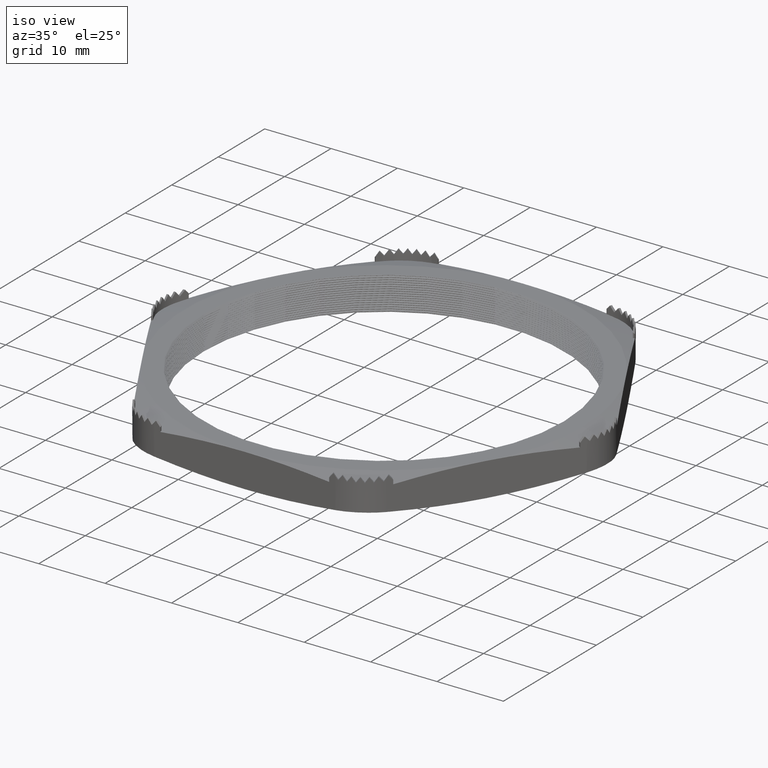
[diagram: clean part render]
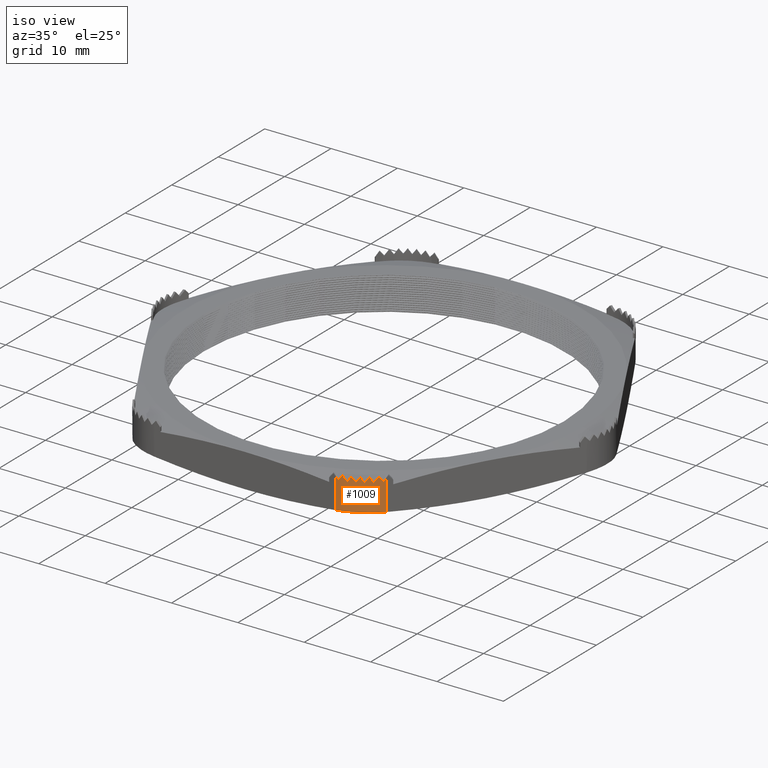
[diagram: same view with one face highlighted and labeled with its STEP entity id]
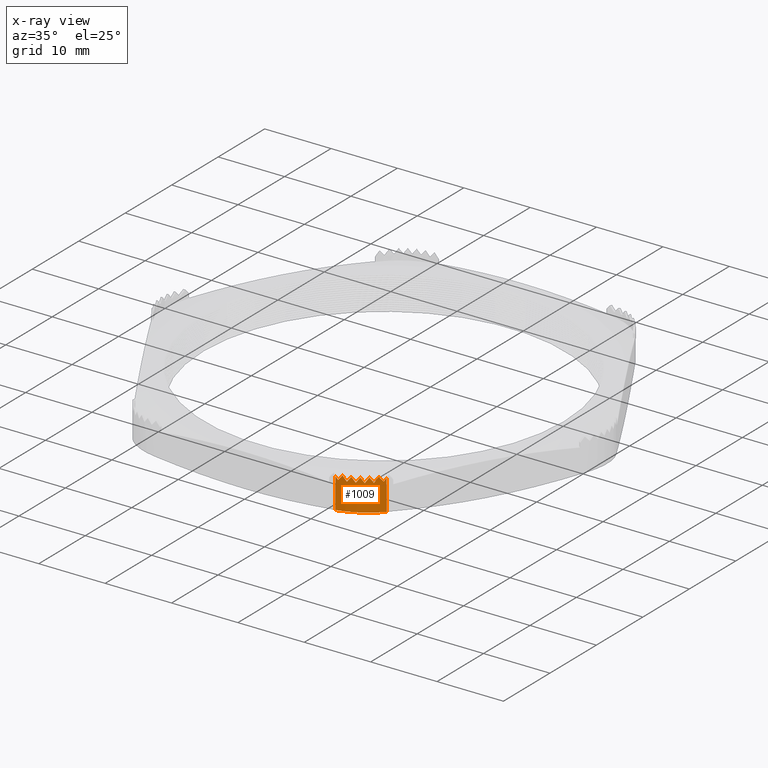
[diagram: x-ray of the same camera — body ghosted, the highlighted face saturated]
A machine part, iso view. The second image highlights one B-rep face of the part: STEP entity #1009.
The next image is the same camera in x-ray: the body ghosted, the highlighted face saturated — about 0% of this face is hidden behind the body in this view.
In plain terms, the highlighted cylindrical surface (partial cylindrical patch) has radius 6.35 mm, axis along (0, 0, -1).
Its self-contained STEP definition (entity closure, byte-faithful):
#709 = VERTEX_POINT ( 'NONE', #4033 ) ;
#743 = VERTEX_POINT ( 'NONE', #4134 ) ;
#745 = EDGE_CURVE ( 'NONE', #743, #746, #4133, .T. ) ;
#746 = VERTEX_POINT ( 'NONE', #4129 ) ;
#772 = VERTEX_POINT ( 'NONE', #4174 ) ;
#774 = EDGE_CURVE ( 'NONE', #772, #709, #4226, .T. ) ;
#919 = EDGE_LOOP ( 'NONE', ( #920, #923, #924, #926, #927, #993, #996, #999, #1002, #1005, #978, #981, #984, #987, #990 ) ) ;
#920 = ORIENTED_EDGE ( 'NONE', *, *, #921, .F. ) ;
#921 = EDGE_CURVE ( 'NONE', #709, #922, #4515, .T. ) ;
#922 = VERTEX_POINT ( 'NONE', #4516 ) ;
#923 = ORIENTED_EDGE ( 'NONE', *, *, #774, .F. ) ;
#924 = ORIENTED_EDGE ( 'NONE', *, *, #925, .T. ) ;
#925 = EDGE_CURVE ( 'NONE', #772, #746, #4544, .T. ) ;
#926 = ORIENTED_EDGE ( 'NONE', *, *, #745, .F. ) ;
#927 = ORIENTED_EDGE ( 'NONE', *, *, #991, .F. ) ;
#976 = EDGE_CURVE ( 'NONE', #977, #1004, #4617, .T. ) ;
#977 = VERTEX_POINT ( 'NONE', #4618 ) ;
#978 = ORIENTED_EDGE ( 'NONE', *, *, #979, .F. ) ;
#979 = EDGE_CURVE ( 'NONE', #980, #977, #4647, .T. ) ;
#980 = VERTEX_POINT ( 'NONE', #4648 ) ;
#981 = ORIENTED_EDGE ( 'NONE', *, *, #982, .F. ) ;
#982 = EDGE_CURVE ( 'NONE', #983, #980, #4641, .T. ) ;
#983 = VERTEX_POINT ( 'NONE', #4642 ) ;
#984 = ORIENTED_EDGE ( 'NONE', *, *, #985, .F. ) ;
#985 = EDGE_CURVE ( 'NONE', #986, #983, #4659, .T. ) ;
#986 = VERTEX_POINT ( 'NONE', #4660 ) ;
#987 = ORIENTED_EDGE ( 'NONE', *, *, #988, .F. ) ;
#988 = EDGE_CURVE ( 'NONE', #989, #986, #4653, .T. ) ;
#989 = VERTEX_POINT ( 'NONE', #4654 ) ;
#990 = ORIENTED_EDGE ( 'NONE', *, *, #1053, .F. ) ;
#991 = EDGE_CURVE ( 'NONE', #992, #743, #4672, .T. ) ;
#992 = VERTEX_POINT ( 'NONE', #4673 ) ;
#993 = ORIENTED_EDGE ( 'NONE', *, *, #994, .F. ) ;
#994 = EDGE_CURVE ( 'NONE', #995, #992, #4666, .T. ) ;
#995 = VERTEX_POINT ( 'NONE', #4667 ) ;
#996 = ORIENTED_EDGE ( 'NONE', *, *, #997, .F. ) ;
#997 = EDGE_CURVE ( 'NONE', #998, #995, #4661, .T. ) ;
#998 = VERTEX_POINT ( 'NONE', #4686 ) ;
#999 = ORIENTED_EDGE ( 'NONE', *, *, #1000, .F. ) ;
#1000 = EDGE_CURVE ( 'NONE', #1001, #998, #4680, .T. ) ;
#1001 = VERTEX_POINT ( 'NONE', #4681 ) ;
#1002 = ORIENTED_EDGE ( 'NONE', *, *, #1003, .F. ) ;
#1003 = EDGE_CURVE ( 'NONE', #1004, #1001, #4674, .T. ) ;
#1004 = VERTEX_POINT ( 'NONE', #4675 ) ;
#1005 = ORIENTED_EDGE ( 'NONE', *, *, #976, .F. ) ;
#1009 = ADVANCED_FACE ( 'NONE', ( #4692 ), #4691, .T. ) ;
#1053 = EDGE_CURVE ( 'NONE', #922, #989, #4789, .T. ) ;
#4033 = CARTESIAN_POINT ( 'NONE',  ( 0.5369357503463522100, -1.179999999999999700, 0.2147405409647772900 ) ) ;
#4129 = CARTESIAN_POINT ( 'NONE',  ( 0.7534421012924618100, -1.054999999999999700, 0.03119414724621189300 ) ) ;
#4130 = DIRECTION ( 'NONE',  ( 0.0000000000000000000, 0.0000000000000000000, -1.000000000000000000 ) ) ;
#4131 = VECTOR ( 'NONE', #4130, 39.37007874015748100 ) ;
#4132 = CARTESIAN_POINT ( 'NONE',  ( 0.7534421012924618100, -1.054999999999999700, 0.2000000000000000100 ) ) ;
#4133 = LINE ( 'NONE', #4132, #4131 ) ;
#4134 = CARTESIAN_POINT ( 'NONE',  ( 0.7534421012924618100, -1.054999999999999700, 0.2136363051197404900 ) ) ;
#4174 = CARTESIAN_POINT ( 'NONE',  ( 0.5369357503463522100, -1.179999999999999700, 0.03119414724621191400 ) ) ;
#4223 = DIRECTION ( 'NONE',  ( 0.0000000000000000000, 0.0000000000000000000, 1.000000000000000000 ) ) ;
#4224 = VECTOR ( 'NONE', #4223, 39.37007874015748100 ) ;
#4225 = CARTESIAN_POINT ( 'NONE',  ( 0.5369357503463522100, -1.179999999999999700, 0.2000000000000000100 ) ) ;
#4226 = LINE ( 'NONE', #4225, #4224 ) ;
#4511 = CARTESIAN_POINT ( 'NONE',  ( 0.5539226775332906100, -1.179422220952234900, 0.1965000000000000100 ) ) ;
#4512 = CARTESIAN_POINT ( 'NONE',  ( 0.5482680091621551200, -1.179807332749892800, 0.2026891886620615900 ) ) ;
#4513 = CARTESIAN_POINT ( 'NONE',  ( 0.5426035175861221300, -1.179999999999999700, 0.2087717125641309900 ) ) ;
#4514 = CARTESIAN_POINT ( 'NONE',  ( 0.5369357503463522100, -1.179999999999999700, 0.2147405409647772900 ) ) ;
#4515 =( BOUNDED_CURVE ( )  B_SPLINE_CURVE ( 3, ( #4514, #4513, #4512, #4511 ),
 .UNSPECIFIED., .F., .T. ) 
 B_SPLINE_CURVE_WITH_KNOTS ( ( 4, 4 ),
 ( 4.188790204786382500, 4.256790306988891700 ),
 .UNSPECIFIED. ) 
 CURVE ( )  GEOMETRIC_REPRESENTATION_ITEM ( )  RATIONAL_B_SPLINE_CURVE ( ( 1.000000000000000000, 0.9996147026276078800, 0.9996147026276078800, 1.000000000000000000 ) ) 
 REPRESENTATION_ITEM ( '' )  );
#4516 = CARTESIAN_POINT ( 'NONE',  ( 0.5539226775332906100, -1.179422220952234900, 0.1965000000000000100 ) ) ;
#4530 = CARTESIAN_POINT ( 'NONE',  ( 0.7534421012924618100, -1.054999999999999700, 0.03119414724621189300 ) ) ;
#4531 = CARTESIAN_POINT ( 'NONE',  ( 0.7479609557944286700, -1.064493622486270400, 0.03241070015073090100 ) ) ;
#4532 = CARTESIAN_POINT ( 'NONE',  ( 0.7418413585470476900, -1.073638839935633600, 0.03348309476403061500 ) ) ;
#4533 = CARTESIAN_POINT ( 'NONE',  ( 0.7285849930246484100, -1.090900566782677700, 0.03531306191811654800 ) ) ;
#4534 = CARTESIAN_POINT ( 'NONE',  ( 0.7214282535390670300, -1.099058029252787400, 0.03607628322899918800 ) ) ;
#4535 = CARTESIAN_POINT ( 'NONE',  ( 0.6983792361406766500, -1.122115602831157400, 0.03792123826636976900 ) ) ;
#4536 = CARTESIAN_POINT ( 'NONE',  ( 0.6806925331664173100, -1.135687147511603000, 0.03855214040762992200 ) ) ;
#4537 = CARTESIAN_POINT ( 'NONE',  ( 0.6524273653811296600, -1.151990969796561100, 0.03854930190488606300 ) ) ;
#4538 = CARTESIAN_POINT ( 'NONE',  ( 0.6426698729453316200, -1.156803326997233500, 0.03839484179317985400 ) ) ;
#4539 = CARTESIAN_POINT ( 'NONE',  ( 0.6224735392539729700, -1.165165347123221700, 0.03777317739728672900 ) ) ;
#4540 = CARTESIAN_POINT ( 'NONE',  ( 0.6119774973205375200, -1.168721048756882000, 0.03730086728492430800 ) ) ;
#4541 = CARTESIAN_POINT ( 'NONE',  ( 0.5803589992278849200, -1.177164789342385800, 0.03544432282190015200 ) ) ;
#4542 = CARTESIAN_POINT ( 'NONE',  ( 0.5588595931555173600, -1.179999999999999900, 0.03362717102356631300 ) ) ;
#4543 = CARTESIAN_POINT ( 'NONE',  ( 0.5369357503463522100, -1.179999999999999700, 0.03119414724621191400 ) ) ;
#4544 = B_SPLINE_CURVE_WITH_KNOTS ( 'NONE', 3,
 ( #4543, #4542, #4541, #4540, #4539, #4538, #4537, #4536, #4535, #4534, #4533, #4532, #4531, #4530 ),
 .UNSPECIFIED., .F., .F.,
 ( 4, 2, 2, 2, 2, 2, 4 ),
 ( 1.984002919198622400E-007, 0.001657436792177085000, 0.002486055988119669500, 0.003314675184062254200, 0.004971913575947430100, 0.005800532771890017800, 0.006629151967832605500 ),
 .UNSPECIFIED. ) ;
#4613 = CARTESIAN_POINT ( 'NONE',  ( 0.6805033685598030900, -1.134666409067332400, 0.1965000000000000100 ) ) ;
#4614 = CARTESIAN_POINT ( 'NONE',  ( 0.6744900993541745900, -1.138884545015788500, 0.2062777876756027300 ) ) ;
#4615 = CARTESIAN_POINT ( 'NONE',  ( 0.6682968868850807100, -1.142833747053122200, 0.2160841314132998200 ) ) ;
#4616 = CARTESIAN_POINT ( 'NONE',  ( 0.6619357503463588800, -1.146506350946105500, 0.2259000000000000200 ) ) ;
#4617 =( BOUNDED_CURVE ( )  B_SPLINE_CURVE ( 3, ( #4616, #4615, #4614, #4613 ),
 .UNSPECIFIED., .F., .T. ) 
 B_SPLINE_CURVE_WITH_KNOTS ( ( 4, 4 ),
 ( 4.712388980384712800, 4.800502956684431900 ),
 .UNSPECIFIED. ) 
 CURVE ( )  GEOMETRIC_REPRESENTATION_ITEM ( )  RATIONAL_B_SPLINE_CURVE ( ( 1.000000000000000000, 0.9993530985791632100, 0.9993530985791632100, 1.000000000000000000 ) ) 
 REPRESENTATION_ITEM ( '' )  );
#4618 = CARTESIAN_POINT ( 'NONE',  ( 0.6619357503463588800, -1.146506350946105500, 0.2259000000000000200 ) ) ;
#4637 = CARTESIAN_POINT ( 'NONE',  ( 0.6423982507932886100, -1.156666409067333500, 0.1965000000000000100 ) ) ;
#4638 = CARTESIAN_POINT ( 'NONE',  ( 0.6356861481783259200, -1.159789391109282700, 0.2063548030232362500 ) ) ;
#4639 = CARTESIAN_POINT ( 'NONE',  ( 0.6288420349499195300, -1.162611350085751600, 0.2161612470716953400 ) ) ;
#4640 = CARTESIAN_POINT ( 'NONE',  ( 0.6218794033985729500, -1.165126722866933800, 0.2259000000000000200 ) ) ;
#4641 =( BOUNDED_CURVE ( )  B_SPLINE_CURVE ( 3, ( #4640, #4639, #4638, #4637 ),
 .UNSPECIFIED., .F., .T. ) 
 B_SPLINE_CURVE_WITH_KNOTS ( ( 4, 4 ),
 ( 4.535467446918408600, 4.624275004084993600 ),
 .UNSPECIFIED. ) 
 CURVE ( )  GEOMETRIC_REPRESENTATION_ITEM ( )  RATIONAL_B_SPLINE_CURVE ( ( 1.000000000000000000, 0.9993428761305045400, 0.9993428761305045400, 1.000000000000000000 ) ) 
 REPRESENTATION_ITEM ( '' )  );
#4642 = CARTESIAN_POINT ( 'NONE',  ( 0.6218794033985729500, -1.165126722866933800, 0.2259000000000000200 ) ) ;
#4643 = CARTESIAN_POINT ( 'NONE',  ( 0.6619357503463588800, -1.146506350946105500, 0.2259000000000000200 ) ) ;
#4644 = CARTESIAN_POINT ( 'NONE',  ( 0.6555746138076369300, -1.150178954839088600, 0.2160841314132995700 ) ) ;
#4645 = CARTESIAN_POINT ( 'NONE',  ( 0.6490578982840818900, -1.153567833149692100, 0.2062777876756024800 ) ) ;
#4646 = CARTESIAN_POINT ( 'NONE',  ( 0.6423982507932886100, -1.156666409067333500, 0.1965000000000000100 ) ) ;
#4647 =( BOUNDED_CURVE ( )  B_SPLINE_CURVE ( 3, ( #4646, #4645, #4644, #4643 ),
 .UNSPECIFIED., .F., .T. ) 
 B_SPLINE_CURVE_WITH_KNOTS ( ( 4, 4 ),
 ( 1.482682350495200700, 1.570796326794919900 ),
 .UNSPECIFIED. ) 
 CURVE ( )  GEOMETRIC_REPRESENTATION_ITEM ( )  RATIONAL_B_SPLINE_CURVE ( ( 1.000000000000000000, 0.9993530985791632100, 0.9993530985791632100, 1.000000000000000000 ) ) 
 REPRESENTATION_ITEM ( '' )  );
#4648 = CARTESIAN_POINT ( 'NONE',  ( 0.6423982507932886100, -1.156666409067333500, 0.1965000000000000100 ) ) ;
#4649 = CARTESIAN_POINT ( 'NONE',  ( 0.6003434086813992400, -1.171825285825254000, 0.1965000000000000100 ) ) ;
#4650 = CARTESIAN_POINT ( 'NONE',  ( 0.5928812412180161100, -1.173781899102242000, 0.2064435253152216200 ) ) ;
#4651 = CARTESIAN_POINT ( 'NONE',  ( 0.5853365600533023700, -1.175391266956423500, 0.2162505227101347800 ) ) ;
#4652 = CARTESIAN_POINT ( 'NONE',  ( 0.5777255148133295700, -1.176649944485557200, 0.2259000000000000200 ) ) ;
#4653 =( BOUNDED_CURVE ( )  B_SPLINE_CURVE ( 3, ( #4652, #4651, #4650, #4649 ),
 .UNSPECIFIED., .F., .T. ) 
 B_SPLINE_CURVE_WITH_KNOTS ( ( 4, 4 ),
 ( 4.352681980799758300, 4.445221987656657000 ),
 .UNSPECIFIED. ) 
 CURVE ( )  GEOMETRIC_REPRESENTATION_ITEM ( )  RATIONAL_B_SPLINE_CURVE ( ( 1.000000000000000000, 0.9992864895715303200, 0.9992864895715303200, 1.000000000000000000 ) ) 
 REPRESENTATION_ITEM ( '' )  );
#4654 = CARTESIAN_POINT ( 'NONE',  ( 0.5777255148133295700, -1.176649944485557200, 0.2259000000000000200 ) ) ;
#4655 = CARTESIAN_POINT ( 'NONE',  ( 0.6218794033985729500, -1.165126722866933800, 0.2259000000000000200 ) ) ;
#4656 = CARTESIAN_POINT ( 'NONE',  ( 0.6148039624529122400, -1.167682850020629300, 0.2160034586247391900 ) ) ;
#4657 = CARTESIAN_POINT ( 'NONE',  ( 0.6076204230001522900, -1.169917220520800400, 0.2061968041058871400 ) ) ;
#4658 = CARTESIAN_POINT ( 'NONE',  ( 0.6003434086813992400, -1.171825285825254000, 0.1965000000000000100 ) ) ;
#4659 =( BOUNDED_CURVE ( )  B_SPLINE_CURVE ( 3, ( #4658, #4657, #4656, #4655 ),
 .UNSPECIFIED., .F., .T. ) 
 B_SPLINE_CURVE_WITH_KNOTS ( ( 4, 4 ),
 ( 1.303629334066865000, 1.393874793328616600 ),
 .UNSPECIFIED. ) 
 CURVE ( )  GEOMETRIC_REPRESENTATION_ITEM ( )  RATIONAL_B_SPLINE_CURVE ( ( 1.000000000000000000, 0.9993214282363848100, 0.9993214282363848100, 1.000000000000000000 ) ) 
 REPRESENTATION_ITEM ( '' )  );
#4660 = CARTESIAN_POINT ( 'NONE',  ( 0.6003434086813992400, -1.171825285825254000, 0.1965000000000000100 ) ) ;
#4661 =( BOUNDED_CURVE ( )  B_SPLINE_CURVE ( 3, ( #4685, #4684, #4683, #4682 ),
 .UNSPECIFIED., .F., .T. ) 
 B_SPLINE_CURVE_WITH_KNOTS ( ( 4, 4 ),
 ( 1.837963319522978300, 1.930503326379879000 ),
 .UNSPECIFIED. ) 
 CURVE ( )  GEOMETRIC_REPRESENTATION_ITEM ( )  RATIONAL_B_SPLINE_CURVE ( ( 1.000000000000000000, 0.9992864895715303200, 0.9992864895715303200, 1.000000000000000000 ) ) 
 REPRESENTATION_ITEM ( '' )  );
#4662 = CARTESIAN_POINT ( 'NONE',  ( 0.7457936328727502500, -1.067398635024476200, 0.1965000000000000100 ) ) ;
#4663 = CARTESIAN_POINT ( 'NONE',  ( 0.7409544147887366900, -1.074754667651223000, 0.2060688687506228900 ) ) ;
#4664 = CARTESIAN_POINT ( 'NONE',  ( 0.7357336809845498300, -1.081845026331587700, 0.2158779840705300800 ) ) ;
#4665 = CARTESIAN_POINT ( 'NONE',  ( 0.7301459858793880600, -1.088649944485552000, 0.2259000000000000200 ) ) ;
#4666 =( BOUNDED_CURVE ( )  B_SPLINE_CURVE ( 3, ( #4665, #4664, #4663, #4662 ),
 .UNSPECIFIED., .F., .T. ) 
 B_SPLINE_CURVE_WITH_KNOTS ( ( 4, 4 ),
 ( 5.072095979969670800, 5.177707701135211900 ),
 .UNSPECIFIED. ) 
 CURVE ( )  GEOMETRIC_REPRESENTATION_ITEM ( )  RATIONAL_B_SPLINE_CURVE ( ( 1.000000000000000000, 0.9990707296621602600, 0.9990707296621602600, 1.000000000000000000 ) ) 
 REPRESENTATION_ITEM ( '' )  );
#4667 = CARTESIAN_POINT ( 'NONE',  ( 0.7301459858793880600, -1.088649944485552000, 0.2259000000000000200 ) ) ;
#4668 = CARTESIAN_POINT ( 'NONE',  ( 0.7534421012924618100, -1.054999999999999700, 0.2136363051197404900 ) ) ;
#4669 = CARTESIAN_POINT ( 'NONE',  ( 0.7510134219439285100, -1.059206596026952300, 0.2080147631564491200 ) ) ;
#4670 = CARTESIAN_POINT ( 'NONE',  ( 0.7484632106919552100, -1.063340644415913900, 0.2023010443129501500 ) ) ;
#4671 = CARTESIAN_POINT ( 'NONE',  ( 0.7457936328727502500, -1.067398635024476200, 0.1965000000000000100 ) ) ;
#4672 =( BOUNDED_CURVE ( )  B_SPLINE_CURVE ( 3, ( #4671, #4670, #4669, #4668 ),
 .UNSPECIFIED., .F., .T. ) 
 B_SPLINE_CURVE_WITH_KNOTS ( ( 4, 4 ),
 ( 2.036115047545420200, 2.094395102393188200 ),
 .UNSPECIFIED. ) 
 CURVE ( )  GEOMETRIC_REPRESENTATION_ITEM ( )  RATIONAL_B_SPLINE_CURVE ( ( 1.000000000000000000, 0.9997169729622552600, 0.9997169729622552600, 1.000000000000000000 ) ) 
 REPRESENTATION_ITEM ( '' )  );
#4673 = CARTESIAN_POINT ( 'NONE',  ( 0.7457936328727502500, -1.067398635024476200, 0.1965000000000000100 ) ) ;
#4674 =( BOUNDED_CURVE ( )  B_SPLINE_CURVE ( 3, ( #4701, #4700, #4699, #4698 ),
 .UNSPECIFIED., .F., .T. ) 
 B_SPLINE_CURVE_WITH_KNOTS ( ( 4, 4 ),
 ( 1.658910303094639000, 1.747717860261225100 ),
 .UNSPECIFIED. ) 
 CURVE ( )  GEOMETRIC_REPRESENTATION_ITEM ( )  RATIONAL_B_SPLINE_CURVE ( ( 1.000000000000000000, 0.9993428761305045400, 0.9993428761305045400, 1.000000000000000000 ) ) 
 REPRESENTATION_ITEM ( '' )  );
#4675 = CARTESIAN_POINT ( 'NONE',  ( 0.6805033685598030900, -1.134666409067332400, 0.1965000000000000100 ) ) ;
#4676 = CARTESIAN_POINT ( 'NONE',  ( 0.7146587619809430200, -1.105825285825250400, 0.1965000000000000100 ) ) ;
#4677 = CARTESIAN_POINT ( 'NONE',  ( 0.7093678217958303600, -1.111173332436767200, 0.2061968041058871700 ) ) ;
#4678 = CARTESIAN_POINT ( 'NONE',  ( 0.7038410304548359300, -1.116277274841859900, 0.2160034586247392400 ) ) ;
#4679 = CARTESIAN_POINT ( 'NONE',  ( 0.6980896389316021400, -1.121126722866931300, 0.2259000000000000200 ) ) ;
#4680 =( BOUNDED_CURVE ( )  B_SPLINE_CURVE ( 3, ( #4679, #4678, #4677, #4676 ),
 .UNSPECIFIED., .F., .T. ) 
 B_SPLINE_CURVE_WITH_KNOTS ( ( 4, 4 ),
 ( 4.889310513851017800, 4.979555973112770300 ),
 .UNSPECIFIED. ) 
 CURVE ( )  GEOMETRIC_REPRESENTATION_ITEM ( )  RATIONAL_B_SPLINE_CURVE ( ( 1.000000000000000000, 0.9993214282363848100, 0.9993214282363848100, 1.000000000000000000 ) ) 
 REPRESENTATION_ITEM ( '' )  );
#4681 = CARTESIAN_POINT ( 'NONE',  ( 0.6980896389316021400, -1.121126722866931300, 0.2259000000000000200 ) ) ;
#4682 = CARTESIAN_POINT ( 'NONE',  ( 0.7301459858793880600, -1.088649944485552000, 0.2259000000000000200 ) ) ;
#4683 = CARTESIAN_POINT ( 'NONE',  ( 0.7252504165439996900, -1.094611964248154700, 0.2162505227101350300 ) ) ;
#4684 = CARTESIAN_POINT ( 'NONE',  ( 0.7200843225158879400, -1.100341165873160300, 0.2064435253152217500 ) ) ;
#4685 = CARTESIAN_POINT ( 'NONE',  ( 0.7146587619809430200, -1.105825285825250400, 0.1965000000000000100 ) ) ;
#4686 = CARTESIAN_POINT ( 'NONE',  ( 0.7146587619809430200, -1.105825285825250400, 0.1965000000000000100 ) ) ;
#4691 = CYLINDRICAL_SURFACE ( 'NONE', #4718, 0.2500000000000000000 ) ;
#4692 = FACE_OUTER_BOUND ( 'NONE', #919, .T. ) ;
#4698 = CARTESIAN_POINT ( 'NONE',  ( 0.6980896389316021400, -1.121126722866931300, 0.2259000000000000200 ) ) ;
#4699 = CARTESIAN_POINT ( 'NONE',  ( 0.6924299464274372700, -1.125898852276997700, 0.2161612470716953200 ) ) ;
#4700 = CARTESIAN_POINT ( 'NONE',  ( 0.6865640016511748200, -1.130415048710941000, 0.2063548030232361700 ) ) ;
#4701 = CARTESIAN_POINT ( 'NONE',  ( 0.6805033685598030900, -1.134666409067332400, 0.1965000000000000100 ) ) ;
#4715 = DIRECTION ( 'NONE',  ( -1.000000000000000000, 0.0000000000000000000, 0.0000000000000000000 ) ) ;
#4716 = DIRECTION ( 'NONE',  ( 0.0000000000000000000, 0.0000000000000000000, -1.000000000000000000 ) ) ;
#4717 = CARTESIAN_POINT ( 'NONE',  ( 0.5369357503463522100, -0.9299999999999996000, 0.2000000000000000100 ) ) ;
#4718 = AXIS2_PLACEMENT_3D ( 'NONE', #4717, #4716, #4715 ) ;
#4789 =( BOUNDED_CURVE ( )  B_SPLINE_CURVE ( 3, ( #4829, #4828, #4827, #4826 ),
 .UNSPECIFIED., .F., .T. ) 
 B_SPLINE_CURVE_WITH_KNOTS ( ( 4, 4 ),
 ( 1.115197653399098600, 1.211089327209964500 ),
 .UNSPECIFIED. ) 
 CURVE ( )  GEOMETRIC_REPRESENTATION_ITEM ( )  RATIONAL_B_SPLINE_CURVE ( ( 1.000000000000000000, 0.9992338790214676500, 0.9992338790214676500, 1.000000000000000000 ) ) 
 REPRESENTATION_ITEM ( '' )  );
#4826 = CARTESIAN_POINT ( 'NONE',  ( 0.5777255148133295700, -1.176649944485557200, 0.2259000000000000200 ) ) ;
#4827 = CARTESIAN_POINT ( 'NONE',  ( 0.5698386007145854700, -1.177954243860649200, 0.2159007691344090600 ) ) ;
#4828 = CARTESIAN_POINT ( 'NONE',  ( 0.5618982383430493100, -1.178879044525398700, 0.2060932553923840200 ) ) ;
#4829 = CARTESIAN_POINT ( 'NONE',  ( 0.5539226775332906100, -1.179422220952234900, 0.1965000000000000100 ) ) ;